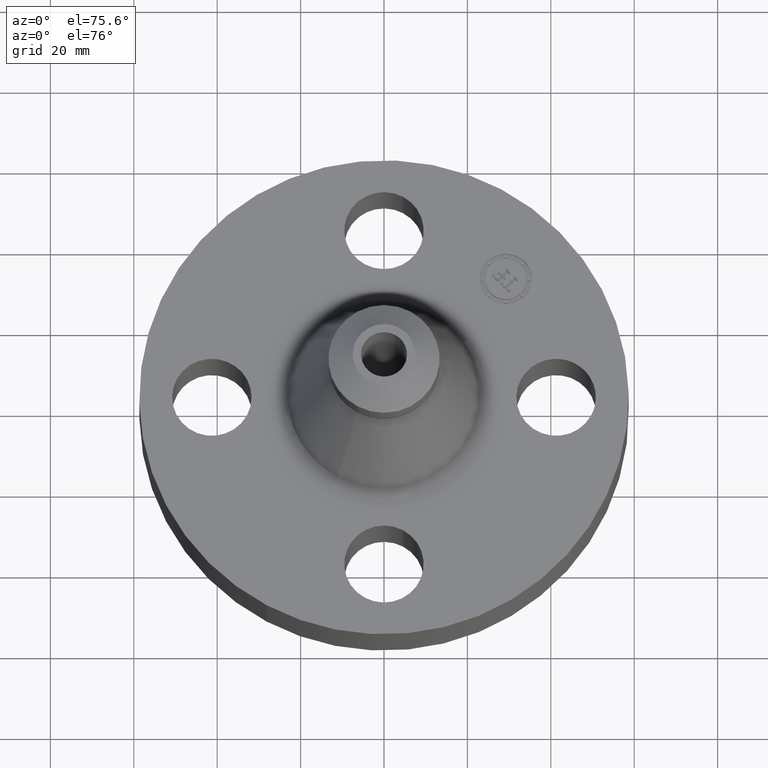
[diagram: clean part render]
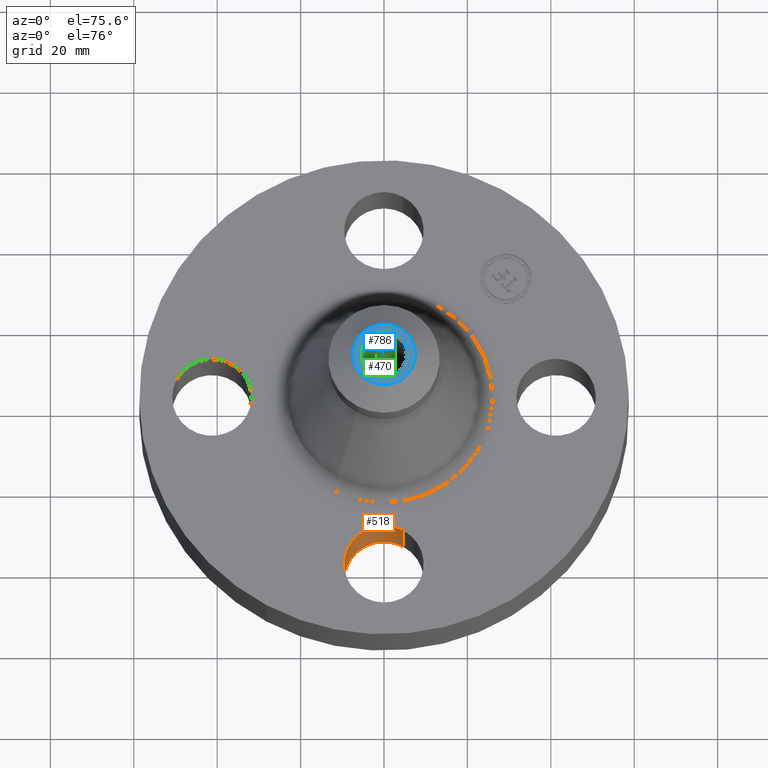
[diagram: same view with three faces highlighted in distinct colors, each labeled with its STEP entity id]
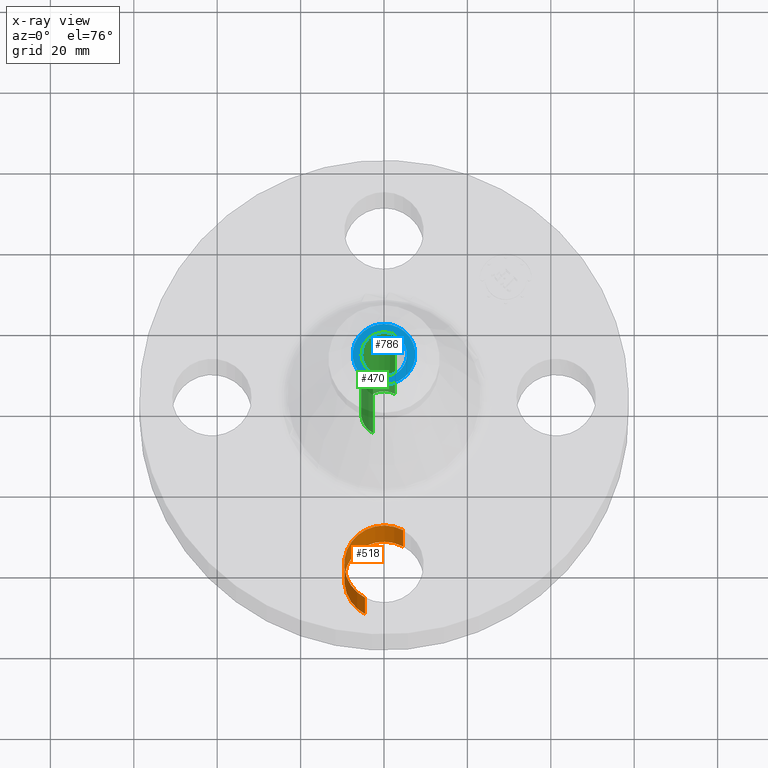
[diagram: x-ray of the same camera — body ghosted, the three highlighted faces saturated]
A machine part, auxiliary view with three faces highlighted in distinct colors.
The next image is the same camera in x-ray (body ghosted, the three faces saturated) — at least one of them is partly hidden behind the body in this view.
Their STEP definitions:

[orange] entity #518 — the highlighted cylindrical surface (partial cylindrical patch) has radius 9.525 mm, axis along (0, -0, -1).
#180=AXIS2_PLACEMENT_3D('Circle Axis2P3D',#178,#179,$) ;
#278=AXIS2_PLACEMENT_3D('Circle Axis2P3D',#276,#277,$) ;
#510=AXIS2_PLACEMENT_3D('Cylinder Axis2P3D',#507,#508,#509) ;
#173=CARTESIAN_POINT('Vertex',(0.179784576973,-1.29590653933,0.)) ;
#175=CARTESIAN_POINT('Vertex',(-0.179784576973,-1.95409346073,0.)) ;
#178=CARTESIAN_POINT('Axis2P3D Location',(-3.49676543189E-017,-1.62500000003,0.)) ;
#276=CARTESIAN_POINT('Axis2P3D Location',(-3.49676543189E-017,-1.62500000003,0.620000000002)) ;
#280=CARTESIAN_POINT('Vertex',(-0.179784576973,-1.95409346073,0.620000000002)) ;
#282=CARTESIAN_POINT('Vertex',(0.179784576977,-1.2959065393,0.619999999987)) ;
#483=CARTESIAN_POINT('Line Origine',(0.179784576977,-1.2959065393,0.310000000001)) ;
#488=CARTESIAN_POINT('Line Origine',(-0.179784576977,-1.95409346072,0.310000000001)) ;
#507=CARTESIAN_POINT('Axis2P3D Location',(-1.8023868212E-016,-1.62500000001,0.616062992128)) ;
#179=DIRECTION('Axis2P3D Direction',(0.,0.,-0.0393700787402)) ;
#277=DIRECTION('Axis2P3D Direction',(0.,0.,-0.0393700787402)) ;
#484=DIRECTION('Vector Direction',(0.,0.,-0.0393700787402)) ;
#489=DIRECTION('Vector Direction',(0.,0.,-0.0393700787402)) ;
#508=DIRECTION('Axis2P3D Direction',(0.,-0.,-0.0393700787402)) ;
#509=DIRECTION('Axis2P3D XDirection',(-0.0188750212049,-0.0345504945626,0.)) ;
#485=VECTOR('Line Direction',#484,0.0393700787402) ;
#490=VECTOR('Line Direction',#489,0.0393700787402) ;
#513=ORIENTED_EDGE('',*,*,#492,.F.) ;
#514=ORIENTED_EDGE('',*,*,#182,.T.) ;
#515=ORIENTED_EDGE('',*,*,#487,.T.) ;
#516=ORIENTED_EDGE('',*,*,#284,.F.) ;
#518=ADVANCED_FACE('PartBody',(#517),#511,.F.) ;
#181=CIRCLE('generated circle',#180,0.374999999988) ;
#279=CIRCLE('generated circle',#278,0.374999999988) ;
#511=CYLINDRICAL_SURFACE('generated cylinder',#510,0.375000000001) ;
#182=EDGE_CURVE('',#176,#174,#181,.T.) ;
#284=EDGE_CURVE('',#281,#283,#279,.T.) ;
#487=EDGE_CURVE('',#174,#283,#486,.F.) ;
#492=EDGE_CURVE('',#176,#281,#491,.F.) ;
#512=EDGE_LOOP('',(#513,#514,#515,#516)) ;
#517=FACE_OUTER_BOUND('',#512,.T.) ;
#486=LINE('Line',#483,#485) ;
#491=LINE('Line',#488,#490) ;
#174=VERTEX_POINT('',#173) ;
#176=VERTEX_POINT('',#175) ;
#281=VERTEX_POINT('',#280) ;
#283=VERTEX_POINT('',#282) ;

[blue] entity #786 — the highlighted planar face has unit normal (0, 0, -1).
#461=AXIS2_PLACEMENT_3D('Circle Axis2P3D',#459,#460,$) ;
#762=AXIS2_PLACEMENT_3D('Plane Axis2P3D',#759,#760,#761) ;
#766=AXIS2_PLACEMENT_3D('Circle Axis2P3D',#764,#765,$) ;
#775=AXIS2_PLACEMENT_3D('Circle Axis2P3D',#773,#774,$) ;
#410=CARTESIAN_POINT('Control Point',(0.104035341878,0.190435415931,2.25000000004)) ;
#411=CARTESIAN_POINT('Control Point',(0.133948867062,0.174093582643,2.25000000004)) ;
#412=CARTESIAN_POINT('Control Point',(0.160653680782,0.15187824242,2.25000000004)) ;
#413=CARTESIAN_POINT('Control Point',(0.182606900747,0.124624738592,2.25000000004)) ;
#414=CARTESIAN_POINT('Control Point',(0.214644367925,0.0629783732069,2.25000000004)) ;
#415=CARTESIAN_POINT('Control Point',(0.220993442234,-0.00620517197372,2.25000000003)) ;
#416=CARTESIAN_POINT('Control Point',(0.217245575572,-0.0409995800479,2.25000000003)) ;
#417=CARTESIAN_POINT('Control Point',(0.196308922866,-0.107244053341,2.25000000003)) ;
#418=CARTESIAN_POINT('Control Point',(0.15187824242,-0.160653680782,2.25000000002)) ;
#419=CARTESIAN_POINT('Control Point',(0.124624738592,-0.182606900747,2.25000000002)) ;
#420=CARTESIAN_POINT('Control Point',(0.062978373207,-0.214644367925,2.25000000002)) ;
#421=CARTESIAN_POINT('Control Point',(-0.00620517197356,-0.220993442234,2.25000000002)) ;
#422=CARTESIAN_POINT('Control Point',(-0.0409995800478,-0.217245575572,2.25000000001)) ;
#423=CARTESIAN_POINT('Control Point',(-0.0741218166941,-0.206777249219,2.25000000001)) ;
#424=CARTESIAN_POINT('Control Point',(-0.104035341878,-0.190435415931,2.25000000001)) ;
#425=CARTESIAN_POINT('Vertex',(0.104035341848,0.190435415907,2.25000000001)) ;
#427=CARTESIAN_POINT('Vertex',(-0.104035341848,-0.1904354159,2.25000000001)) ;
#459=CARTESIAN_POINT('Axis2P3D Location',(0.,0.,2.25000000004)) ;
#759=CARTESIAN_POINT('Axis2P3D Location',(0.,0.525000000002,2.25000000001)) ;
#764=CARTESIAN_POINT('Axis2P3D Location',(1.28117289306E-011,1.0465679067E-011,2.25000000001)) ;
#768=CARTESIAN_POINT('Vertex',(0.141785384287,-0.259536405056,2.25000000001)) ;
#770=CARTESIAN_POINT('Vertex',(-0.141785384287,0.259536405056,2.25000000001)) ;
#773=CARTESIAN_POINT('Axis2P3D Location',(-1.28117289306E-011,-3.53229256868E-012,2.25000000001)) ;
#460=DIRECTION('Axis2P3D Direction',(0.,0.,-0.0393700787402)) ;
#760=DIRECTION('Axis2P3D Direction',(0.,0.,-0.0393700787402)) ;
#761=DIRECTION('Axis2P3D XDirection',(0.0393700787402,0.,0.)) ;
#765=DIRECTION('Axis2P3D Direction',(0.,0.,-0.0393700787402)) ;
#774=DIRECTION('Axis2P3D Direction',(0.,0.,-0.0393700787402)) ;
#779=ORIENTED_EDGE('',*,*,#772,.T.) ;
#780=ORIENTED_EDGE('',*,*,#777,.T.) ;
#783=ORIENTED_EDGE('',*,*,#463,.T.) ;
#784=ORIENTED_EDGE('',*,*,#429,.T.) ;
#785=FACE_BOUND('',#782,.T.) ;
#786=ADVANCED_FACE('PartBody',(#781,#785),#763,.F.) ;
#409=B_SPLINE_CURVE_WITH_KNOTS('',5,(#410,#411,#412,#413,#414,#415,#416,#417,#418,#419,#420,#421,#422,#423,#424),.UNSPECIFIED.,.F.,.U.,(6,3,3,3,6),(-8.65791519406,-4.32895759703,0.,4.32895759703,8.65791519406),.UNSPECIFIED.) ;
#462=CIRCLE('generated circle',#461,0.217000000001) ;
#767=CIRCLE('generated circle',#766,0.295740157487) ;
#776=CIRCLE('generated circle',#775,0.295740157487) ;
#429=EDGE_CURVE('',#426,#428,#409,.T.) ;
#463=EDGE_CURVE('',#428,#426,#462,.T.) ;
#772=EDGE_CURVE('',#769,#771,#767,.F.) ;
#777=EDGE_CURVE('',#771,#769,#776,.F.) ;
#778=EDGE_LOOP('',(#779,#780)) ;
#782=EDGE_LOOP('',(#783,#784)) ;
#781=FACE_OUTER_BOUND('',#778,.T.) ;
#763=PLANE('',#762) ;
#426=VERTEX_POINT('',#425) ;
#428=VERTEX_POINT('',#427) ;
#769=VERTEX_POINT('',#768) ;
#771=VERTEX_POINT('',#770) ;

[green] entity #470 — the highlighted cylindrical surface (edge-blend (fillet) strip) has radius 5.5118 mm, axis along (0, 0, -1).
#162=AXIS2_PLACEMENT_3D('Circle Axis2P3D',#160,#161,$) ;
#457=AXIS2_PLACEMENT_3D('Cylinder Axis2P3D',#454,#455,#456) ;
#461=AXIS2_PLACEMENT_3D('Circle Axis2P3D',#459,#460,$) ;
#155=CARTESIAN_POINT('Vertex',(0.104035341878,0.190435415931,2.93326867607E-011)) ;
#157=CARTESIAN_POINT('Vertex',(-0.104035341878,-0.190435415931,2.93326867607E-011)) ;
#160=CARTESIAN_POINT('Axis2P3D Location',(-3.08535524338E-011,3.72965000965E-013,0.)) ;
#425=CARTESIAN_POINT('Vertex',(0.104035341848,0.190435415907,2.25000000001)) ;
#427=CARTESIAN_POINT('Vertex',(-0.104035341848,-0.1904354159,2.25000000001)) ;
#430=CARTESIAN_POINT('Line Origine',(0.104035341878,0.190435415931,1.12500000002)) ;
#435=CARTESIAN_POINT('Line Origine',(-0.104035341878,-0.190435415931,1.12500000002)) ;
#454=CARTESIAN_POINT('Axis2P3D Location',(0.,0.,1.125)) ;
#459=CARTESIAN_POINT('Axis2P3D Location',(0.,0.,2.25000000004)) ;
#161=DIRECTION('Axis2P3D Direction',(0.,0.,-0.0393700787402)) ;
#431=DIRECTION('Vector Direction',(0.,0.,-0.0393700787402)) ;
#436=DIRECTION('Vector Direction',(0.,0.,-0.0393700787402)) ;
#455=DIRECTION('Axis2P3D Direction',(0.,0.,-0.0393700787402)) ;
#456=DIRECTION('Axis2P3D XDirection',(-0.0188750212049,-0.0345504945626,0.)) ;
#460=DIRECTION('Axis2P3D Direction',(0.,0.,-0.0393700787402)) ;
#432=VECTOR('Line Direction',#431,0.0393700787402) ;
#437=VECTOR('Line Direction',#436,0.0393700787402) ;
#465=ORIENTED_EDGE('',*,*,#463,.F.) ;
#466=ORIENTED_EDGE('',*,*,#439,.T.) ;
#467=ORIENTED_EDGE('',*,*,#164,.T.) ;
#468=ORIENTED_EDGE('',*,*,#434,.F.) ;
#470=ADVANCED_FACE('PartBody',(#469),#458,.F.) ;
#163=CIRCLE('generated circle',#162,0.216999999995) ;
#462=CIRCLE('generated circle',#461,0.217000000001) ;
#458=CYLINDRICAL_SURFACE('generated cylinder',#457,0.217000000001) ;
#164=EDGE_CURVE('',#158,#156,#163,.T.) ;
#434=EDGE_CURVE('',#426,#156,#433,.T.) ;
#439=EDGE_CURVE('',#428,#158,#438,.T.) ;
#463=EDGE_CURVE('',#428,#426,#462,.T.) ;
#464=EDGE_LOOP('',(#465,#466,#467,#468)) ;
#469=FACE_OUTER_BOUND('',#464,.T.) ;
#433=LINE('Line',#430,#432) ;
#438=LINE('Line',#435,#437) ;
#156=VERTEX_POINT('',#155) ;
#158=VERTEX_POINT('',#157) ;
#426=VERTEX_POINT('',#425) ;
#428=VERTEX_POINT('',#427) ;